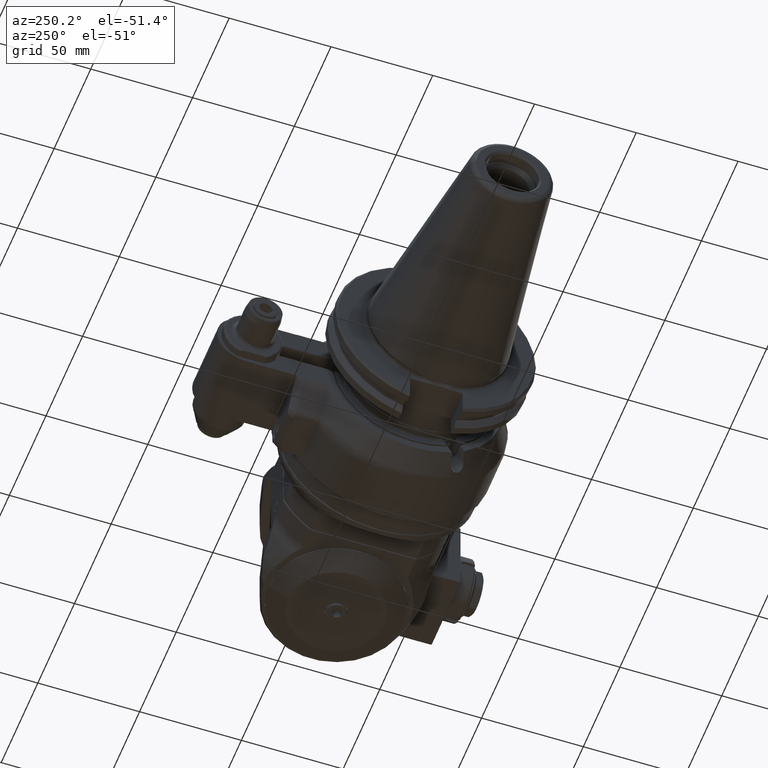
[diagram: clean part render]
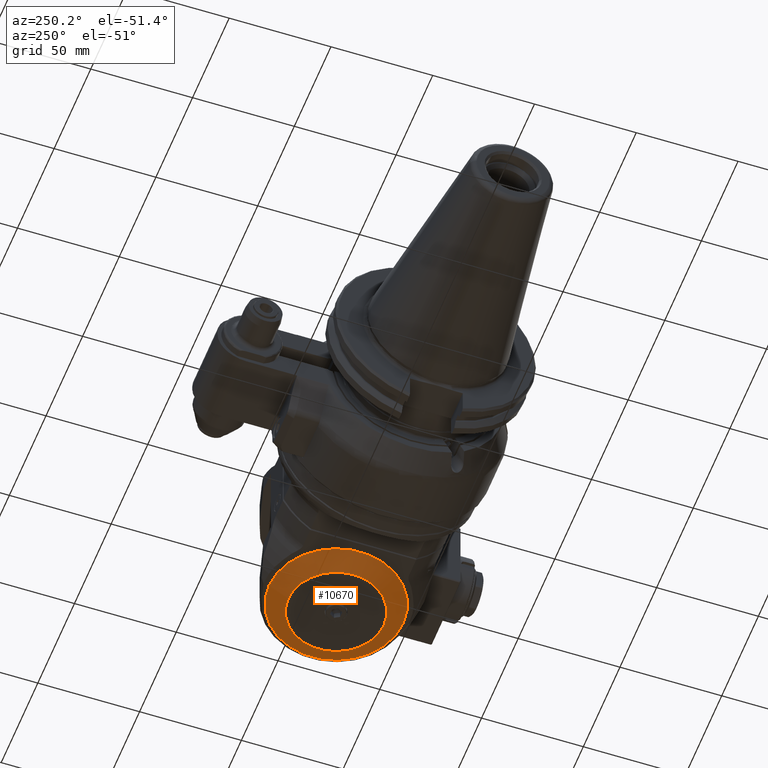
[diagram: same view with one face highlighted and labeled with its STEP entity id]
A machine part, auxiliary view. The second image highlights one B-rep face of the part: STEP entity #10670.
In plain terms, the highlighted conical surface has half-angle 60 deg.
Its self-contained STEP definition (entity closure, byte-faithful):
#837=CONICAL_SURFACE('',#11743,28.23686027919,1.0471975511966);
#1355=FACE_OUTER_BOUND('',#2063,.T.);
#2063=EDGE_LOOP('',(#9401,#9402,#9403,#9404));
#2578=CIRCLE('',#11742,33.);
#2579=CIRCLE('',#11744,23.47372055837);
#3407=LINE('',#59714,#4150);
#4150=VECTOR('',#14344,28.23686027919);
#5142=VERTEX_POINT('',#59709);
#5143=VERTEX_POINT('',#59713);
#6600=EDGE_CURVE('',#5142,#5142,#2578,.T.);
#6601=EDGE_CURVE('',#5142,#5143,#3407,.T.);
#6602=EDGE_CURVE('',#5143,#5143,#2579,.T.);
#9401=ORIENTED_EDGE('',*,*,#6600,.T.);
#9402=ORIENTED_EDGE('',*,*,#6601,.T.);
#9403=ORIENTED_EDGE('',*,*,#6602,.F.);
#9404=ORIENTED_EDGE('',*,*,#6601,.F.);
#10670=ADVANCED_FACE('',(#1355),#837,.T.);
#11742=AXIS2_PLACEMENT_3D('',#59711,#14340,#14341);
#11743=AXIS2_PLACEMENT_3D('',#59712,#14342,#14343);
#11744=AXIS2_PLACEMENT_3D('',#59715,#14345,#14346);
#14340=DIRECTION('center_axis',(-1.,0.,0.));
#14341=DIRECTION('ref_axis',(0.,0.,-1.));
#14342=DIRECTION('center_axis',(1.,0.,0.));
#14343=DIRECTION('ref_axis',(0.,0.,1.));
#14344=DIRECTION('',(-0.5,-1.06057523872491E-16,0.866025403784439));
#14345=DIRECTION('center_axis',(-1.,0.,0.));
#14346=DIRECTION('ref_axis',(0.,0.,1.));
#59709=CARTESIAN_POINT('',(-35.9999999999999,0.,-33.));
#59711=CARTESIAN_POINT('Origin',(-35.9999999999999,0.,0.));
#59712=CARTESIAN_POINT('Origin',(-38.7499999999999,0.,0.));
#59713=CARTESIAN_POINT('',(-41.5000000000023,2.8747016745889E-15,-23.4737205583714));
#59714=CARTESIAN_POINT('',(-38.7499999999999,3.45801805588811E-15,-28.23686027919));
#59715=CARTESIAN_POINT('Origin',(-41.4999999999999,0.,0.));